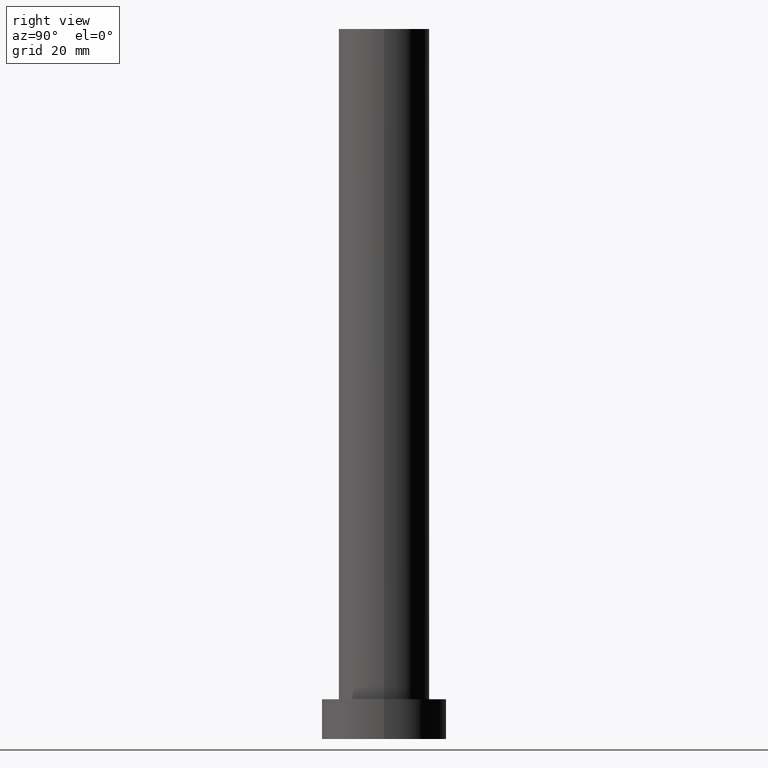
[diagram: clean part render]
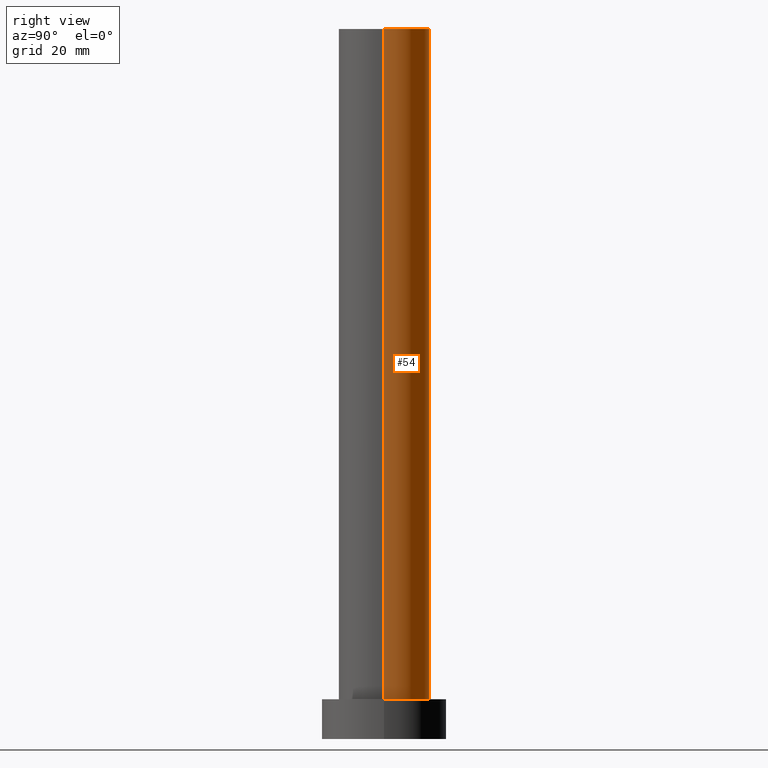
[diagram: same view with one face highlighted and labeled with its STEP entity id]
A machine part, right view. The second image highlights one B-rep face of the part: STEP entity #54.
In plain terms, the highlighted cylindrical surface (partial cylindrical patch) has radius 8 mm, axis along (-0, -0, -1).
Its self-contained STEP definition (entity closure, byte-faithful):
#4 = CARTESIAN_POINT ( 'NONE',  ( 8.000000000000000000, 9.797174393178825657E-16, 125.0000000000000000 ) ) ;
#6 = CARTESIAN_POINT ( 'NONE',  ( -8.000000000000000000, 0.000000000000000000, 125.0000000000000000 ) ) ;
#11 = DIRECTION ( 'NONE',  ( -1.000000000000000000, 0.000000000000000000, 0.000000000000000000 ) ) ;
#13 = CARTESIAN_POINT ( 'NONE',  ( 0.000000000000000000, 0.000000000000000000, 7.000000000000000000 ) ) ;
#24 = VECTOR ( 'NONE', #39, 1000.000000000000000 ) ;
#27 = AXIS2_PLACEMENT_3D ( 'NONE', #197, #198, #11 ) ;
#31 = FACE_OUTER_BOUND ( 'NONE', #48, .T. ) ;
#39 = DIRECTION ( 'NONE',  ( -0.000000000000000000, -0.000000000000000000, -1.000000000000000000 ) ) ;
#42 = CARTESIAN_POINT ( 'NONE',  ( 8.000000000000000000, 9.797174393178825657E-16, 7.000000000000000000 ) ) ;
#48 = EDGE_LOOP ( 'NONE', ( #167, #243, #128, #119 ) ) ;
#53 = VERTEX_POINT ( 'NONE', #124 ) ;
#54 = ADVANCED_FACE ( 'NONE', ( #31 ), #122, .T. ) ;
#58 = CARTESIAN_POINT ( 'NONE',  ( 0.000000000000000000, 0.000000000000000000, 125.0000000000000000 ) ) ;
#62 = AXIS2_PLACEMENT_3D ( 'NONE', #13, #180, #199 ) ;
#65 = VECTOR ( 'NONE', #99, 1000.000000000000000 ) ;
#70 = CIRCLE ( 'NONE', #196, 8.000000000000000000 ) ;
#76 = CARTESIAN_POINT ( 'NONE',  ( 8.000000000000000000, 9.797174393178825657E-16, 125.0000000000000000 ) ) ;
#77 = EDGE_CURVE ( 'NONE', #164, #239, #233, .T. ) ;
#82 = LINE ( 'NONE', #6, #24 ) ;
#97 = EDGE_CURVE ( 'NONE', #239, #158, #126, .T. ) ;
#99 = DIRECTION ( 'NONE',  ( -0.000000000000000000, -0.000000000000000000, -1.000000000000000000 ) ) ;
#108 = DIRECTION ( 'NONE',  ( 0.000000000000000000, 0.000000000000000000, 1.000000000000000000 ) ) ;
#119 = ORIENTED_EDGE ( 'NONE', *, *, #166, .F. ) ;
#122 = CYLINDRICAL_SURFACE ( 'NONE', #27, 8.000000000000000000 ) ;
#124 = CARTESIAN_POINT ( 'NONE',  ( -8.000000000000000000, 0.000000000000000000, 125.0000000000000000 ) ) ;
#126 = CIRCLE ( 'NONE', #62, 8.000000000000000000 ) ;
#128 = ORIENTED_EDGE ( 'NONE', *, *, #97, .T. ) ;
#158 = VERTEX_POINT ( 'NONE', #238 ) ;
#164 = VERTEX_POINT ( 'NONE', #4 ) ;
#166 = EDGE_CURVE ( 'NONE', #53, #158, #82, .T. ) ;
#167 = ORIENTED_EDGE ( 'NONE', *, *, #213, .F. ) ;
#180 = DIRECTION ( 'NONE',  ( 0.000000000000000000, 0.000000000000000000, 1.000000000000000000 ) ) ;
#196 = AXIS2_PLACEMENT_3D ( 'NONE', #58, #108, #204 ) ;
#197 = CARTESIAN_POINT ( 'NONE',  ( 0.000000000000000000, 0.000000000000000000, 125.0000000000000000 ) ) ;
#198 = DIRECTION ( 'NONE',  ( -0.000000000000000000, -0.000000000000000000, -1.000000000000000000 ) ) ;
#199 = DIRECTION ( 'NONE',  ( 1.000000000000000000, 0.000000000000000000, 0.000000000000000000 ) ) ;
#204 = DIRECTION ( 'NONE',  ( 1.000000000000000000, 0.000000000000000000, 0.000000000000000000 ) ) ;
#213 = EDGE_CURVE ( 'NONE', #164, #53, #70, .T. ) ;
#233 = LINE ( 'NONE', #76, #65 ) ;
#238 = CARTESIAN_POINT ( 'NONE',  ( -8.000000000000000000, 0.000000000000000000, 7.000000000000000000 ) ) ;
#239 = VERTEX_POINT ( 'NONE', #42 ) ;
#243 = ORIENTED_EDGE ( 'NONE', *, *, #77, .T. ) ;